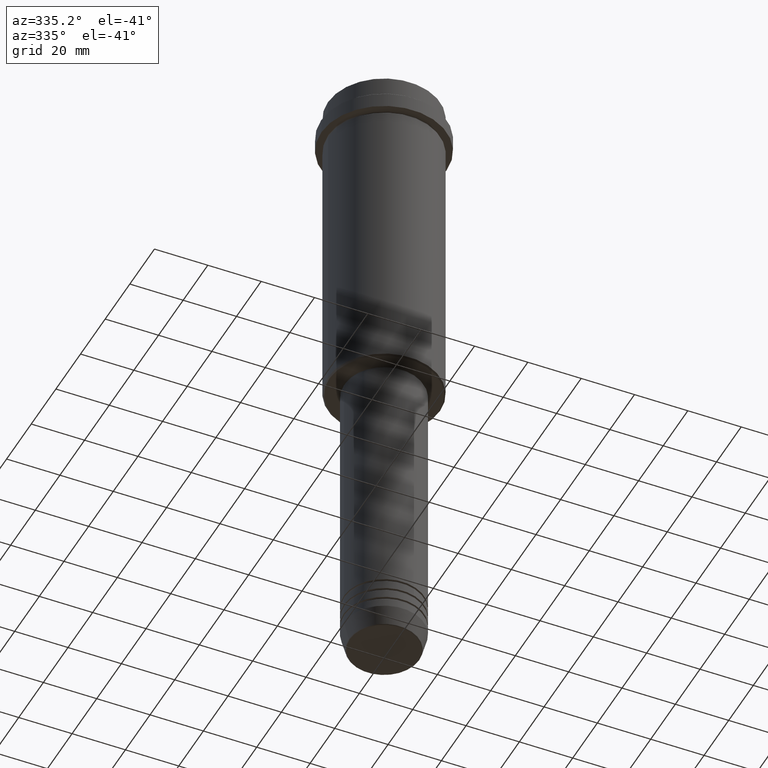
[diagram: clean part render]
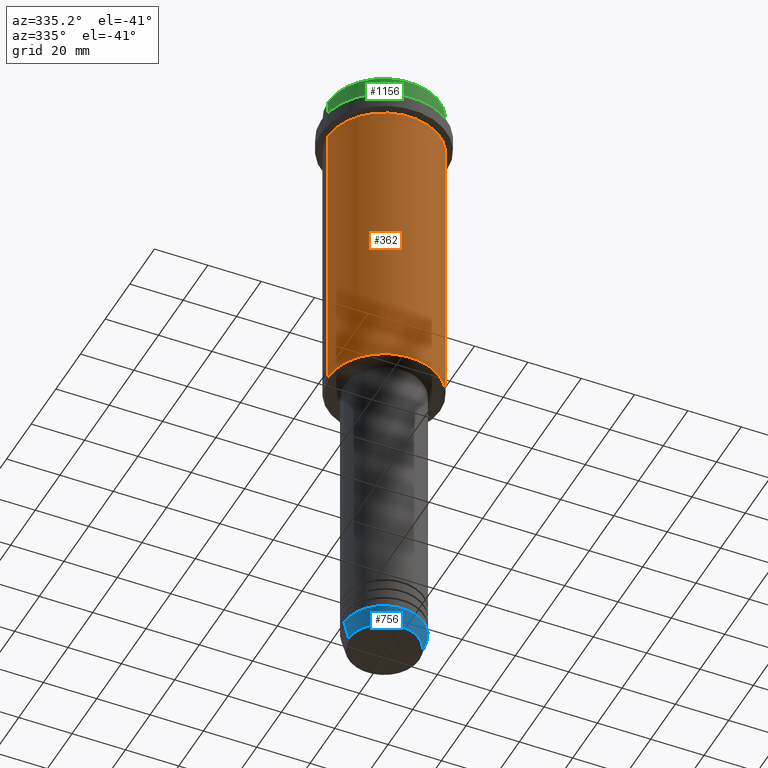
[diagram: same view with three faces highlighted in distinct colors, each labeled with its STEP entity id]
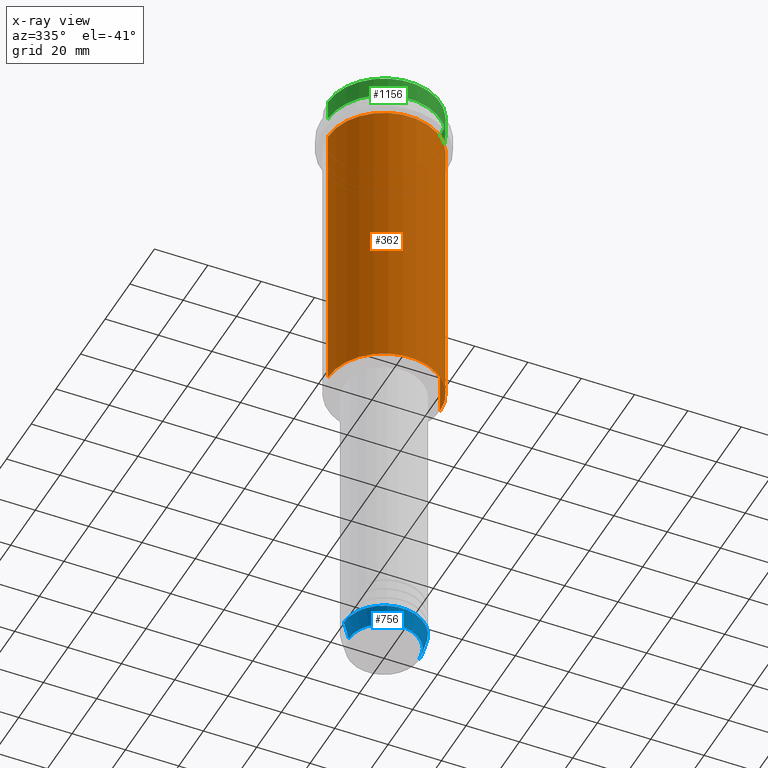
[diagram: x-ray of the same camera — body ghosted, the three highlighted faces saturated]
A machine part, auxiliary view with three faces highlighted in distinct colors.
The next image is the same camera in x-ray (body ghosted, the three faces saturated) — at least one of them is partly hidden behind the body in this view.
Their STEP definitions:

[orange] entity #362 — the highlighted cylindrical surface (partial cylindrical patch) has radius 21 mm, axis along (-0, -0, 1).
#15 = VECTOR ( 'NONE', #329, 1000.000000000000000 ) ;
#25 = LINE ( 'NONE', #1205, #15 ) ;
#51 = ORIENTED_EDGE ( 'NONE', *, *, #270, .T. ) ;
#72 = ORIENTED_EDGE ( 'NONE', *, *, #106, .F. ) ;
#84 = FACE_OUTER_BOUND ( 'NONE', #1175, .T. ) ;
#93 = CARTESIAN_POINT ( 'NONE',  ( -21.00000000000000000, 2.571758278209441661E-15, -124.4999999999999289 ) ) ;
#104 = DIRECTION ( 'NONE',  ( 1.000000000000000000, 0.000000000000000000, 0.000000000000000000 ) ) ;
#105 = AXIS2_PLACEMENT_3D ( 'NONE', #190, #1172, #385 ) ;
#106 = EDGE_CURVE ( 'NONE', #1067, #840, #335, .T. ) ;
#109 = CIRCLE ( 'NONE', #316, 21.00000000000000000 ) ;
#127 = EDGE_CURVE ( 'NONE', #935, #1067, #25, .T. ) ;
#190 = CARTESIAN_POINT ( 'NONE',  ( 0.000000000000000000, 0.000000000000000000, 0.000000000000000000 ) ) ;
#210 = ORIENTED_EDGE ( 'NONE', *, *, #127, .F. ) ;
#226 = VECTOR ( 'NONE', #1246, 1000.000000000000000 ) ;
#268 = CARTESIAN_POINT ( 'NONE',  ( 21.00000000000000000, 0.000000000000000000, -124.4999999999999289 ) ) ;
#270 = EDGE_CURVE ( 'NONE', #697, #840, #365, .T. ) ;
#316 = AXIS2_PLACEMENT_3D ( 'NONE', #1176, #854, #620 ) ;
#329 = DIRECTION ( 'NONE',  ( -0.000000000000000000, -0.000000000000000000, 1.000000000000000000 ) ) ;
#335 = CIRCLE ( 'NONE', #1184, 21.00000000000000000 ) ;
#362 = ADVANCED_FACE ( 'NONE', ( #84 ), #966, .T. ) ;
#365 = LINE ( 'NONE', #921, #226 ) ;
#385 = DIRECTION ( 'NONE',  ( 1.000000000000000000, 0.000000000000000000, 0.000000000000000000 ) ) ;
#441 = CARTESIAN_POINT ( 'NONE',  ( 0.000000000000000000, 0.000000000000000000, -16.00000000000000355 ) ) ;
#473 = ORIENTED_EDGE ( 'NONE', *, *, #857, .T. ) ;
#562 = DIRECTION ( 'NONE',  ( -0.000000000000000000, -0.000000000000000000, 1.000000000000000000 ) ) ;
#620 = DIRECTION ( 'NONE',  ( -1.000000000000000000, 0.000000000000000000, 0.000000000000000000 ) ) ;
#669 = CARTESIAN_POINT ( 'NONE',  ( -21.00000000000000000, 2.571758278209441661E-15, -16.00000000000000355 ) ) ;
#697 = VERTEX_POINT ( 'NONE', #268 ) ;
#840 = VERTEX_POINT ( 'NONE', #1363 ) ;
#854 = DIRECTION ( 'NONE',  ( -0.000000000000000000, -0.000000000000000000, 1.000000000000000000 ) ) ;
#857 = EDGE_CURVE ( 'NONE', #935, #697, #109, .T. ) ;
#921 = CARTESIAN_POINT ( 'NONE',  ( 21.00000000000000000, 0.000000000000000000, 0.000000000000000000 ) ) ;
#935 = VERTEX_POINT ( 'NONE', #93 ) ;
#966 = CYLINDRICAL_SURFACE ( 'NONE', #105, 21.00000000000000000 ) ;
#1067 = VERTEX_POINT ( 'NONE', #669 ) ;
#1172 = DIRECTION ( 'NONE',  ( -0.000000000000000000, -0.000000000000000000, 1.000000000000000000 ) ) ;
#1175 = EDGE_LOOP ( 'NONE', ( #210, #473, #51, #72 ) ) ;
#1176 = CARTESIAN_POINT ( 'NONE',  ( 0.000000000000000000, 0.000000000000000000, -124.4999999999999289 ) ) ;
#1184 = AXIS2_PLACEMENT_3D ( 'NONE', #441, #562, #104 ) ;
#1205 = CARTESIAN_POINT ( 'NONE',  ( -21.00000000000000000, 2.571758278209441661E-15, 0.000000000000000000 ) ) ;
#1246 = DIRECTION ( 'NONE',  ( -0.000000000000000000, -0.000000000000000000, 1.000000000000000000 ) ) ;
#1363 = CARTESIAN_POINT ( 'NONE',  ( 21.00000000000000000, 0.000000000000000000, -16.00000000000000355 ) ) ;

[blue] entity #756 — the highlighted conical surface has half-angle 15 deg.
#46 = VERTEX_POINT ( 'NONE', #533 ) ;
#144 = DIRECTION ( 'NONE',  ( 1.000000000000000000, 0.000000000000000000, 0.000000000000000000 ) ) ;
#167 = CARTESIAN_POINT ( 'NONE',  ( 0.000000000000000000, 0.000000000000000000, -239.6294095225512422 ) ) ;
#189 = CARTESIAN_POINT ( 'NONE',  ( 13.22365507213719660, 0.000000000000000000, -239.6294095225512422 ) ) ;
#303 = LINE ( 'NONE', #833, #1319 ) ;
#322 = LINE ( 'NONE', #1417, #628 ) ;
#344 = EDGE_CURVE ( 'NONE', #792, #46, #303, .T. ) ;
#375 = DIRECTION ( 'NONE',  ( 1.000000000000000000, 0.000000000000000000, 0.000000000000000000 ) ) ;
#394 = CARTESIAN_POINT ( 'NONE',  ( 0.000000000000000000, 0.000000000000000000, -232.9999999999999716 ) ) ;
#404 = DIRECTION ( 'NONE',  ( 0.2588190451025210725, 0.000000000000000000, 0.9659258262890680902 ) ) ;
#444 = CARTESIAN_POINT ( 'NONE',  ( -15.00000000000000000, 1.836970198721029589E-15, -232.9999999999999716 ) ) ;
#510 = VERTEX_POINT ( 'NONE', #444 ) ;
#533 = CARTESIAN_POINT ( 'NONE',  ( 15.00000000000000000, 0.000000000000000000, -232.9999999999999716 ) ) ;
#553 = CARTESIAN_POINT ( 'NONE',  ( -13.22365507213719837, 1.728200442216588780E-15, -239.6294095225512422 ) ) ;
#563 = CIRCLE ( 'NONE', #749, 13.22365507213719660 ) ;
#564 = AXIS2_PLACEMENT_3D ( 'NONE', #1118, #1238, #144 ) ;
#583 = EDGE_CURVE ( 'NONE', #1039, #510, #322, .T. ) ;
#587 = AXIS2_PLACEMENT_3D ( 'NONE', #394, #613, #923 ) ;
#613 = DIRECTION ( 'NONE',  ( -0.000000000000000000, -0.000000000000000000, 1.000000000000000000 ) ) ;
#628 = VECTOR ( 'NONE', #880, 1000.000000000000114 ) ;
#654 = EDGE_CURVE ( 'NONE', #1039, #792, #563, .T. ) ;
#672 = FACE_OUTER_BOUND ( 'NONE', #1131, .T. ) ;
#702 = CONICAL_SURFACE ( 'NONE', #564, 15.00000000000000000, 0.2617993877991497964 ) ;
#749 = AXIS2_PLACEMENT_3D ( 'NONE', #167, #1001, #375 ) ;
#756 = ADVANCED_FACE ( 'NONE', ( #672 ), #702, .T. ) ;
#792 = VERTEX_POINT ( 'NONE', #189 ) ;
#833 = CARTESIAN_POINT ( 'NONE',  ( 15.00000000000000000, 0.000000000000000000, -232.9999999999999716 ) ) ;
#861 = ORIENTED_EDGE ( 'NONE', *, *, #1229, .F. ) ;
#880 = DIRECTION ( 'NONE',  ( -0.2588190451025210725, 3.169619151431769255E-17, 0.9659258262890680902 ) ) ;
#910 = CIRCLE ( 'NONE', #587, 15.00000000000000000 ) ;
#923 = DIRECTION ( 'NONE',  ( 1.000000000000000000, 0.000000000000000000, 0.000000000000000000 ) ) ;
#945 = ORIENTED_EDGE ( 'NONE', *, *, #344, .T. ) ;
#964 = ORIENTED_EDGE ( 'NONE', *, *, #654, .T. ) ;
#1001 = DIRECTION ( 'NONE',  ( -0.000000000000000000, -0.000000000000000000, 1.000000000000000000 ) ) ;
#1039 = VERTEX_POINT ( 'NONE', #553 ) ;
#1118 = CARTESIAN_POINT ( 'NONE',  ( 0.000000000000000000, 0.000000000000000000, -232.9999999999999716 ) ) ;
#1131 = EDGE_LOOP ( 'NONE', ( #1259, #964, #945, #861 ) ) ;
#1229 = EDGE_CURVE ( 'NONE', #510, #46, #910, .T. ) ;
#1238 = DIRECTION ( 'NONE',  ( -0.000000000000000000, -0.000000000000000000, 1.000000000000000000 ) ) ;
#1259 = ORIENTED_EDGE ( 'NONE', *, *, #583, .F. ) ;
#1319 = VECTOR ( 'NONE', #404, 1000.000000000000114 ) ;
#1417 = CARTESIAN_POINT ( 'NONE',  ( -15.00000000000000000, 1.836970198721029589E-15, -232.9999999999999716 ) ) ;

[green] entity #1156 — the highlighted cylindrical surface (partial cylindrical patch) has radius 21 mm, axis along (-0, -0, 1).
#42 = DIRECTION ( 'NONE',  ( 0.000000000000000000, 0.000000000000000000, -1.000000000000000000 ) ) ;
#52 = CARTESIAN_POINT ( 'NONE',  ( 0.000000000000000000, 0.000000000000000000, -7.999999999999998224 ) ) ;
#96 = VERTEX_POINT ( 'NONE', #1194 ) ;
#107 = VECTOR ( 'NONE', #1295, 1000.000000000000000 ) ;
#186 = EDGE_LOOP ( 'NONE', ( #1104, #290, #882, #1401 ) ) ;
#199 = DIRECTION ( 'NONE',  ( 1.000000000000000000, 0.000000000000000000, 0.000000000000000000 ) ) ;
#247 = DIRECTION ( 'NONE',  ( 1.000000000000000000, 0.000000000000000000, 0.000000000000000000 ) ) ;
#255 = CARTESIAN_POINT ( 'NONE',  ( 0.000000000000000000, 0.000000000000000000, -0.5000000000000663913 ) ) ;
#257 = CIRCLE ( 'NONE', #656, 21.00000000000000000 ) ;
#290 = ORIENTED_EDGE ( 'NONE', *, *, #1339, .T. ) ;
#297 = CIRCLE ( 'NONE', #1049, 21.00000000000000000 ) ;
#310 = EDGE_CURVE ( 'NONE', #423, #918, #481, .T. ) ;
#354 = CARTESIAN_POINT ( 'NONE',  ( -21.00000000000000000, 2.571758278209441661E-15, 0.000000000000000000 ) ) ;
#381 = VERTEX_POINT ( 'NONE', #729 ) ;
#423 = VERTEX_POINT ( 'NONE', #1164 ) ;
#440 = CARTESIAN_POINT ( 'NONE',  ( 21.00000000000000000, 0.000000000000000000, 0.000000000000000000 ) ) ;
#481 = LINE ( 'NONE', #354, #1297 ) ;
#554 = EDGE_CURVE ( 'NONE', #381, #96, #995, .T. ) ;
#656 = AXIS2_PLACEMENT_3D ( 'NONE', #52, #1201, #199 ) ;
#692 = CARTESIAN_POINT ( 'NONE',  ( 0.000000000000000000, 0.000000000000000000, 0.000000000000000000 ) ) ;
#729 = CARTESIAN_POINT ( 'NONE',  ( 21.00000000000000000, 0.000000000000000000, -7.999999999999998224 ) ) ;
#745 = EDGE_CURVE ( 'NONE', #96, #918, #297, .T. ) ;
#785 = DIRECTION ( 'NONE',  ( 1.000000000000000000, 0.000000000000000000, 0.000000000000000000 ) ) ;
#795 = DIRECTION ( 'NONE',  ( -0.000000000000000000, -0.000000000000000000, 1.000000000000000000 ) ) ;
#882 = ORIENTED_EDGE ( 'NONE', *, *, #554, .T. ) ;
#918 = VERTEX_POINT ( 'NONE', #1181 ) ;
#995 = LINE ( 'NONE', #440, #107 ) ;
#998 = CYLINDRICAL_SURFACE ( 'NONE', #1006, 21.00000000000000000 ) ;
#1006 = AXIS2_PLACEMENT_3D ( 'NONE', #692, #1124, #785 ) ;
#1049 = AXIS2_PLACEMENT_3D ( 'NONE', #255, #42, #247 ) ;
#1104 = ORIENTED_EDGE ( 'NONE', *, *, #310, .F. ) ;
#1124 = DIRECTION ( 'NONE',  ( -0.000000000000000000, -0.000000000000000000, 1.000000000000000000 ) ) ;
#1130 = FACE_OUTER_BOUND ( 'NONE', #186, .T. ) ;
#1156 = ADVANCED_FACE ( 'NONE', ( #1130 ), #998, .T. ) ;
#1164 = CARTESIAN_POINT ( 'NONE',  ( -21.00000000000000000, 2.571758278209441661E-15, -7.999999999999998224 ) ) ;
#1181 = CARTESIAN_POINT ( 'NONE',  ( -21.00000000000000000, 2.571758278209441661E-15, -0.5000000000000663913 ) ) ;
#1194 = CARTESIAN_POINT ( 'NONE',  ( 21.00000000000000000, 0.000000000000000000, -0.5000000000000663913 ) ) ;
#1201 = DIRECTION ( 'NONE',  ( -0.000000000000000000, -0.000000000000000000, 1.000000000000000000 ) ) ;
#1295 = DIRECTION ( 'NONE',  ( -0.000000000000000000, -0.000000000000000000, 1.000000000000000000 ) ) ;
#1297 = VECTOR ( 'NONE', #795, 1000.000000000000000 ) ;
#1339 = EDGE_CURVE ( 'NONE', #423, #381, #257, .T. ) ;
#1401 = ORIENTED_EDGE ( 'NONE', *, *, #745, .T. ) ;